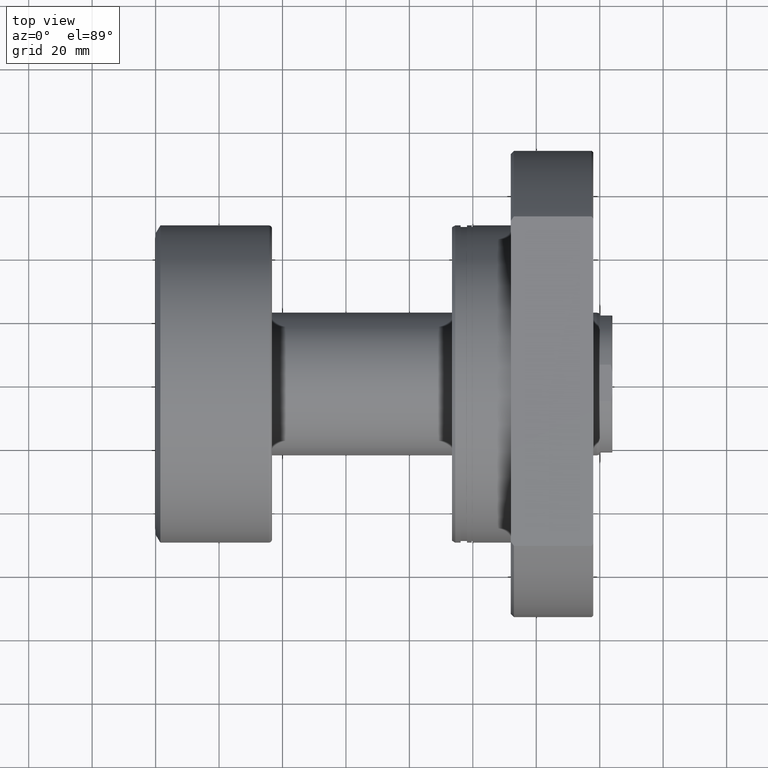
[diagram: clean part render]
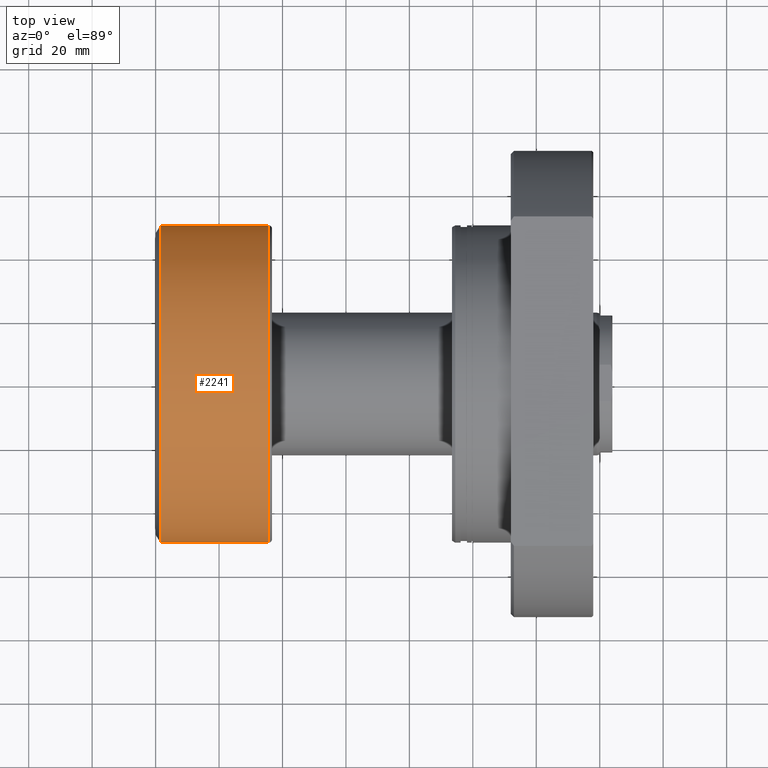
[diagram: same view with one face highlighted and labeled with its STEP entity id]
A machine part, top view. The second image highlights one B-rep face of the part: STEP entity #2241.
In plain terms, the highlighted cylindrical surface (partial cylindrical patch) has radius 50 mm, axis along (-1, -0, -0).
Its self-contained STEP definition (entity closure, byte-faithful):
#167 = LINE ( 'NONE', #835, #398 ) ;
#197 = CARTESIAN_POINT ( 'NONE',  ( 1.500000000000005551, 50.00000000000000000, 0.000000000000000000 ) ) ;
#275 = EDGE_CURVE ( 'NONE', #1601, #2559, #1660, .T. ) ;
#339 = DIRECTION ( 'NONE',  ( -1.000000000000000000, -1.069542322069065801E-17, -0.000000000000000000 ) ) ;
#398 = VECTOR ( 'NONE', #3147, 1000.000000000000000 ) ;
#411 = CIRCLE ( 'NONE', #981, 50.00000000000000000 ) ;
#468 = VERTEX_POINT ( 'NONE', #1786 ) ;
#513 = AXIS2_PLACEMENT_3D ( 'NONE', #596, #855, #2605 ) ;
#526 = EDGE_LOOP ( 'NONE', ( #2672, #3039, #2940, #1521 ) ) ;
#596 = CARTESIAN_POINT ( 'NONE',  ( 35.70000000000000284, 3.818266089786565135E-16, 0.000000000000000000 ) ) ;
#647 = CARTESIAN_POINT ( 'NONE',  ( 1.500000000000005995, 1.604313483103604941E-17, 0.000000000000000000 ) ) ;
#703 = EDGE_CURVE ( 'NONE', #468, #2956, #167, .T. ) ;
#707 = VECTOR ( 'NONE', #963, 1000.000000000000000 ) ;
#835 = CARTESIAN_POINT ( 'NONE',  ( 5.347711610345329959E-16, -50.00000000000000000, 0.000000000000000000 ) ) ;
#855 = DIRECTION ( 'NONE',  ( -1.000000000000000000, -1.069542322069065801E-17, -0.000000000000000000 ) ) ;
#963 = DIRECTION ( 'NONE',  ( -1.000000000000000000, -1.069542322069065801E-17, -0.000000000000000000 ) ) ;
#981 = AXIS2_PLACEMENT_3D ( 'NONE', #647, #2644, #2398 ) ;
#1087 = DIRECTION ( 'NONE',  ( 1.069542322069065955E-17, -1.000000000000000000, 0.000000000000000000 ) ) ;
#1153 = EDGE_CURVE ( 'NONE', #468, #1601, #2488, .T. ) ;
#1409 = CARTESIAN_POINT ( 'NONE',  ( 35.70000000000000284, 50.00000000000000000, 6.123233995736766085E-15 ) ) ;
#1521 = ORIENTED_EDGE ( 'NONE', *, *, #703, .F. ) ;
#1531 = AXIS2_PLACEMENT_3D ( 'NONE', #2571, #339, #1087 ) ;
#1601 = VERTEX_POINT ( 'NONE', #1409 ) ;
#1612 = CARTESIAN_POINT ( 'NONE',  ( 1.500000000000006217, -50.00000000000000000, 6.123233995736766085E-15 ) ) ;
#1660 = LINE ( 'NONE', #2977, #707 ) ;
#1786 = CARTESIAN_POINT ( 'NONE',  ( 35.70000000000000284, -50.00000000000000000, 0.000000000000000000 ) ) ;
#1859 = FACE_OUTER_BOUND ( 'NONE', #526, .T. ) ;
#2134 = CYLINDRICAL_SURFACE ( 'NONE', #1531, 50.00000000000000000 ) ;
#2241 = ADVANCED_FACE ( 'NONE', ( #1859 ), #2134, .T. ) ;
#2398 = DIRECTION ( 'NONE',  ( 8.673617379884035472E-18, -1.000000000000000000, 0.000000000000000000 ) ) ;
#2488 = CIRCLE ( 'NONE', #513, 50.00000000000000000 ) ;
#2559 = VERTEX_POINT ( 'NONE', #197 ) ;
#2571 = CARTESIAN_POINT ( 'NONE',  ( 0.000000000000000000, 0.000000000000000000, 0.000000000000000000 ) ) ;
#2605 = DIRECTION ( 'NONE',  ( 0.000000000000000000, -1.000000000000000000, 0.000000000000000000 ) ) ;
#2644 = DIRECTION ( 'NONE',  ( -1.000000000000000000, -1.069542322069065801E-17, -0.000000000000000000 ) ) ;
#2672 = ORIENTED_EDGE ( 'NONE', *, *, #1153, .T. ) ;
#2940 = ORIENTED_EDGE ( 'NONE', *, *, #3034, .F. ) ;
#2956 = VERTEX_POINT ( 'NONE', #1612 ) ;
#2977 = CARTESIAN_POINT ( 'NONE',  ( -5.347711610345329959E-16, 50.00000000000000000, 6.123233995736766085E-15 ) ) ;
#3034 = EDGE_CURVE ( 'NONE', #2956, #2559, #411, .T. ) ;
#3039 = ORIENTED_EDGE ( 'NONE', *, *, #275, .T. ) ;
#3147 = DIRECTION ( 'NONE',  ( -1.000000000000000000, -1.069542322069065801E-17, -0.000000000000000000 ) ) ;